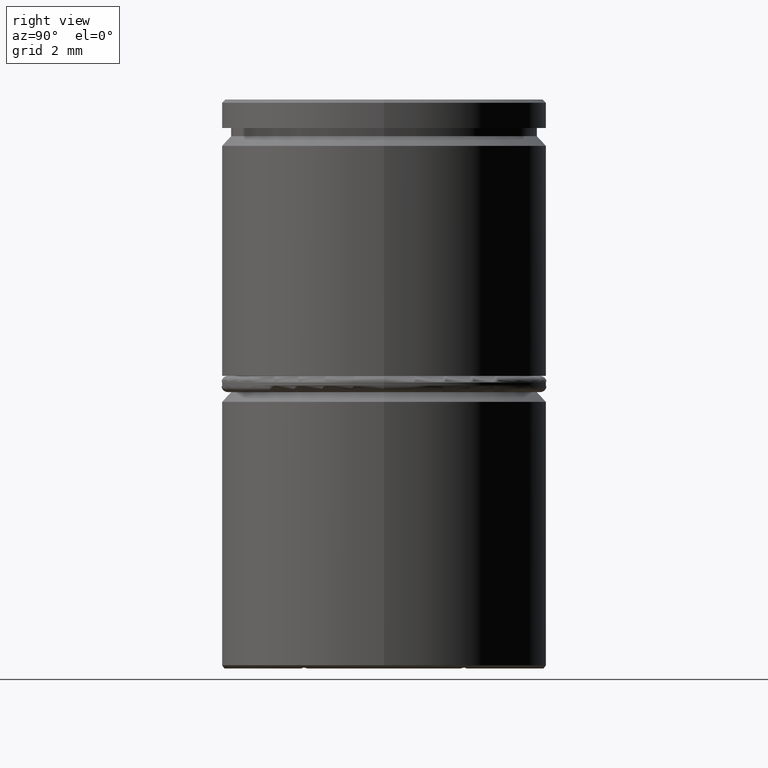
[diagram: clean part render]
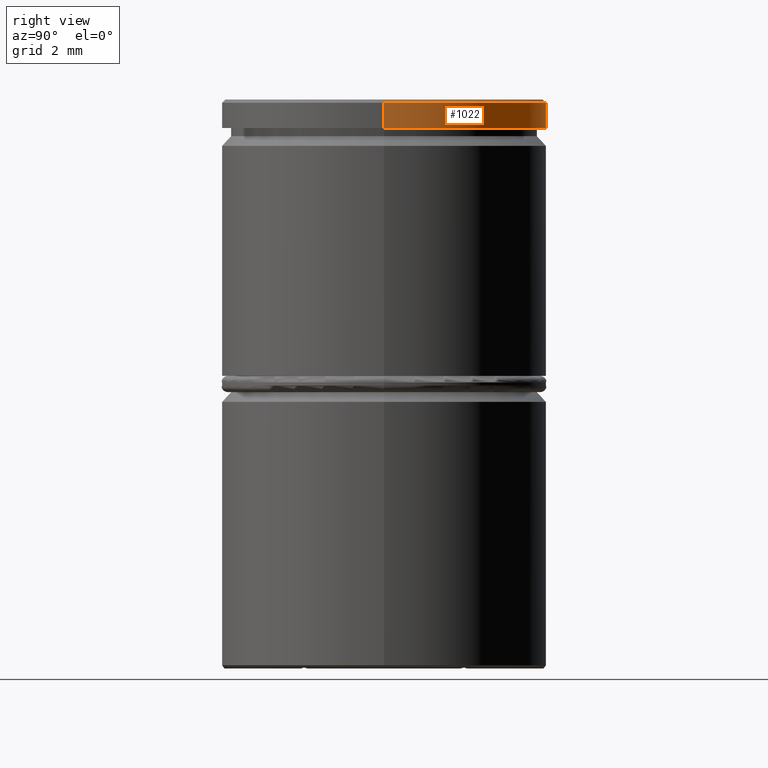
[diagram: same view with one face highlighted and labeled with its STEP entity id]
A machine part, right view. The second image highlights one B-rep face of the part: STEP entity #1022.
In plain terms, the highlighted cylindrical surface (partial cylindrical patch) has radius 5 mm, axis along (-0, -0, 1).
Its self-contained STEP definition (entity closure, byte-faithful):
#3 = EDGE_CURVE ( 'NONE', #176, #514, #1223, .T. ) ;
#42 = CIRCLE ( 'NONE', #884, 5.000000000000000000 ) ;
#105 = DIRECTION ( 'NONE',  ( 0.000000000000000000, 0.000000000000000000, -1.000000000000000000 ) ) ;
#107 = CARTESIAN_POINT ( 'NONE',  ( 0.000000000000000000, 0.000000000000000000, -0.8749999999999998890 ) ) ;
#131 = FACE_OUTER_BOUND ( 'NONE', #605, .T. ) ;
#170 = CARTESIAN_POINT ( 'NONE',  ( -5.000000000000000000, 6.123233995736766282E-16, 0.000000000000000000 ) ) ;
#176 = VERTEX_POINT ( 'NONE', #1124 ) ;
#188 = EDGE_CURVE ( 'NONE', #514, #316, #206, .T. ) ;
#193 = AXIS2_PLACEMENT_3D ( 'NONE', #107, #964, #950 ) ;
#206 = LINE ( 'NONE', #170, #1038 ) ;
#294 = EDGE_CURVE ( 'NONE', #176, #1372, #971, .T. ) ;
#316 = VERTEX_POINT ( 'NONE', #863 ) ;
#359 = CARTESIAN_POINT ( 'NONE',  ( 5.000000000000000000, 0.000000000000000000, 0.000000000000000000 ) ) ;
#437 = CARTESIAN_POINT ( 'NONE',  ( 0.000000000000000000, 0.000000000000000000, -0.09999999999999505118 ) ) ;
#514 = VERTEX_POINT ( 'NONE', #579 ) ;
#579 = CARTESIAN_POINT ( 'NONE',  ( -5.000000000000000000, 6.123233995736766282E-16, -0.8749999999999998890 ) ) ;
#605 = EDGE_LOOP ( 'NONE', ( #809, #1362, #1097, #1044 ) ) ;
#614 = VECTOR ( 'NONE', #769, 1000.000000000000000 ) ;
#705 = AXIS2_PLACEMENT_3D ( 'NONE', #1068, #752, #1305 ) ;
#752 = DIRECTION ( 'NONE',  ( -0.000000000000000000, -0.000000000000000000, 1.000000000000000000 ) ) ;
#769 = DIRECTION ( 'NONE',  ( -0.000000000000000000, -0.000000000000000000, 1.000000000000000000 ) ) ;
#809 = ORIENTED_EDGE ( 'NONE', *, *, #3, .T. ) ;
#847 = DIRECTION ( 'NONE',  ( -0.000000000000000000, -0.000000000000000000, 1.000000000000000000 ) ) ;
#863 = CARTESIAN_POINT ( 'NONE',  ( -5.000000000000000000, 6.123233995736766282E-16, -0.09999999999999505118 ) ) ;
#884 = AXIS2_PLACEMENT_3D ( 'NONE', #437, #105, #963 ) ;
#950 = DIRECTION ( 'NONE',  ( 1.000000000000000000, 0.000000000000000000, 0.000000000000000000 ) ) ;
#951 = CYLINDRICAL_SURFACE ( 'NONE', #705, 5.000000000000000000 ) ;
#963 = DIRECTION ( 'NONE',  ( 1.000000000000000000, 0.000000000000000000, 0.000000000000000000 ) ) ;
#964 = DIRECTION ( 'NONE',  ( -0.000000000000000000, -0.000000000000000000, 1.000000000000000000 ) ) ;
#971 = LINE ( 'NONE', #359, #614 ) ;
#1022 = ADVANCED_FACE ( 'NONE', ( #131 ), #951, .T. ) ;
#1038 = VECTOR ( 'NONE', #847, 1000.000000000000000 ) ;
#1044 = ORIENTED_EDGE ( 'NONE', *, *, #294, .F. ) ;
#1068 = CARTESIAN_POINT ( 'NONE',  ( 0.000000000000000000, 0.000000000000000000, 0.000000000000000000 ) ) ;
#1097 = ORIENTED_EDGE ( 'NONE', *, *, #1279, .T. ) ;
#1124 = CARTESIAN_POINT ( 'NONE',  ( 5.000000000000000000, 0.000000000000000000, -0.8749999999999998890 ) ) ;
#1220 = CARTESIAN_POINT ( 'NONE',  ( 5.000000000000000000, 0.000000000000000000, -0.09999999999999505118 ) ) ;
#1223 = CIRCLE ( 'NONE', #193, 5.000000000000000000 ) ;
#1279 = EDGE_CURVE ( 'NONE', #316, #1372, #42, .T. ) ;
#1305 = DIRECTION ( 'NONE',  ( 1.000000000000000000, 0.000000000000000000, 0.000000000000000000 ) ) ;
#1362 = ORIENTED_EDGE ( 'NONE', *, *, #188, .T. ) ;
#1372 = VERTEX_POINT ( 'NONE', #1220 ) ;